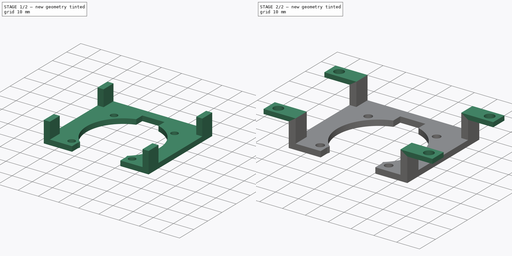
[diagram: build sequence overview — one tinted view per stage of 2, left to right]
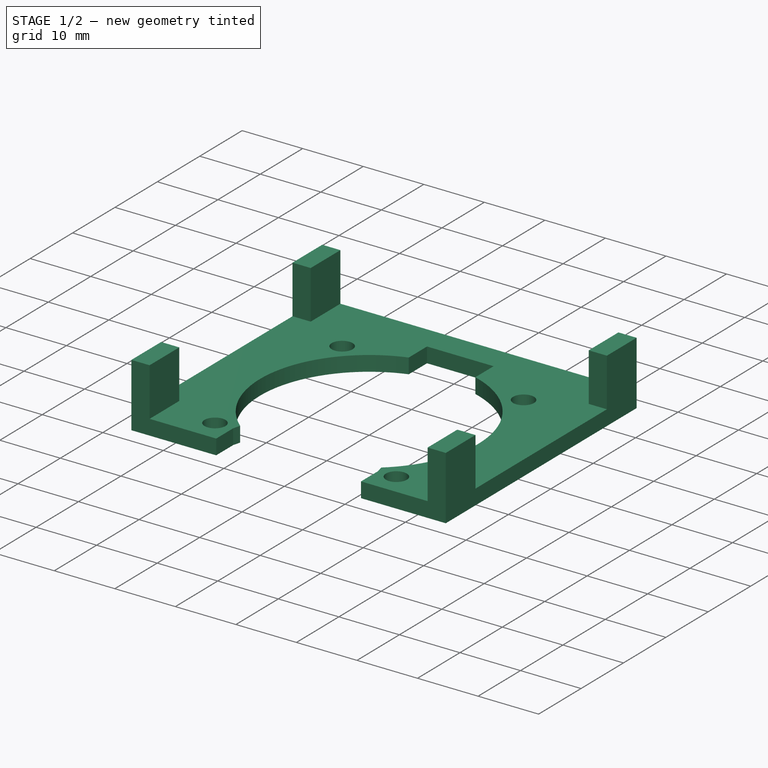
[diagram: stage 1 of 2 — iso view after this stage's code; geometry added in this stage tinted green]
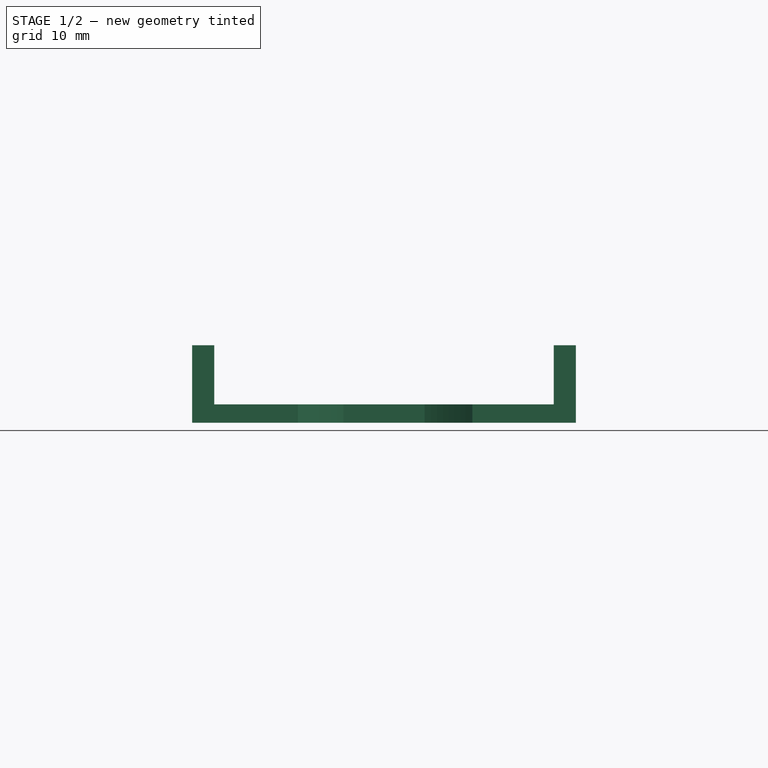
[diagram: stage 1 of 2 — front view after this stage's code; geometry added in this stage tinted green]
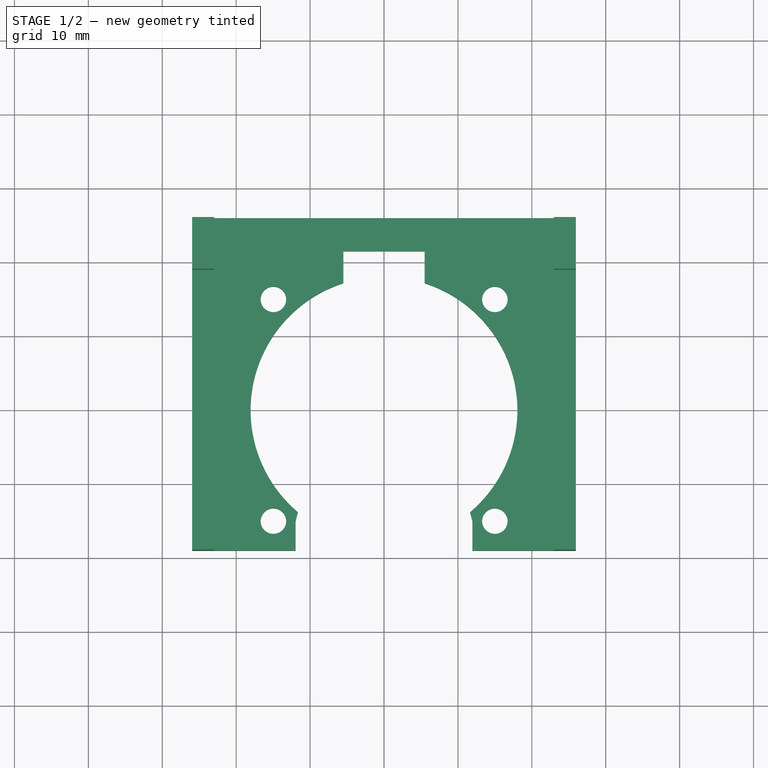
[diagram: stage 1 of 2 — top view after this stage's code; geometry added in this stage tinted green]
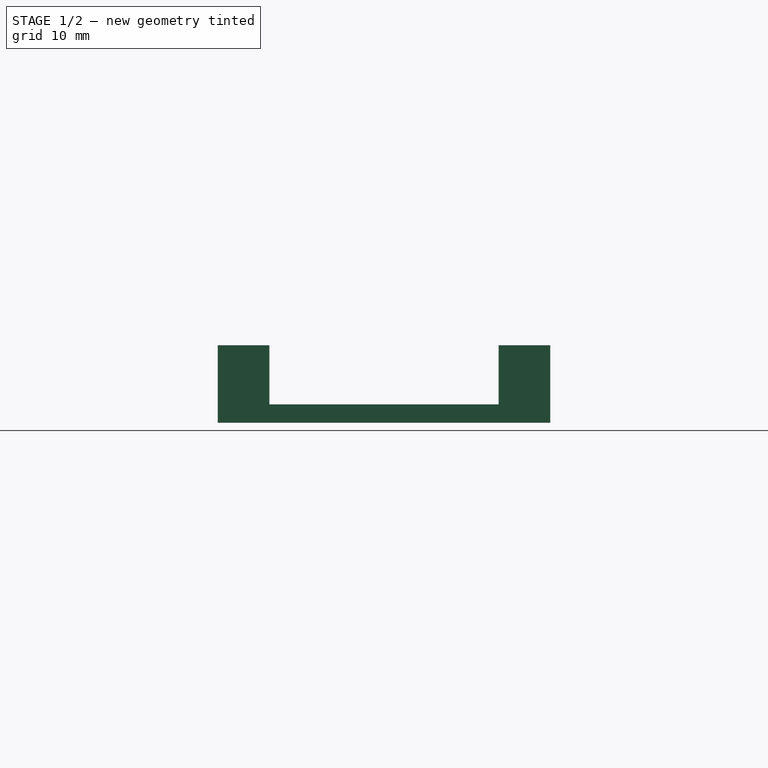
[diagram: stage 1 of 2 — right view after this stage's code; geometry added in this stage tinted green]
FCSTD DOCUMENT  (FreeCAD 1.0R39109 (Git))
Label: cam_holder_base
License: All rights reserved
LicenseURL: https://en.wikipedia.org/wiki/All_rights_reserved
objects: Sketcher::SketchObject×4, PartDesign::Pad×3, PartDesign::Body×1
note: 18 computed .brp shape members not serialized (recipe doc carries the construction recipe); baked Part::Feature solids carry a one-line shape summary decoded from their .brp

FEATURE [Sketcher::SketchObject] Sketch
  ArcFitTolerance = 0
  FullyConstrained = true
  MakeInternals = false
  sketch-geometry (27):
    g0: LineSegment [constr] StartX=-19.96 StartY=19 StartZ=0 EndX=-19.96 EndY=-14 EndZ=0
    g1: LineSegment StartX=-19.96 StartY=-19 StartZ=0 EndX=-11.96 EndY=-19 EndZ=0
    g2: LineSegment [constr] StartX=20 StartY=-14 StartZ=0 EndX=20 EndY=19 EndZ=0
    g3: LineSegment [constr] StartX=20 StartY=19 StartZ=0 EndX=-19.96 EndY=19 EndZ=0
    g4: GeomPoint [constr] X=0 Y=0 Z=0
    g5: Circle CenterX=-14.96 CenterY=15 CenterZ=0 NormalX=0 NormalY=0 NormalZ=1 AngleXU=0 Radius=1.725
    g6: Circle CenterX=15 CenterY=15 CenterZ=0 NormalX=0 NormalY=0 NormalZ=1 AngleXU=0 Radius=1.725
    g7: Circle CenterX=-14.96 CenterY=-15 CenterZ=0 NormalX=0 NormalY=0 NormalZ=1 AngleXU=0 Radius=1.725
    g8: Circle CenterX=15 CenterY=-15 CenterZ=0 NormalX=0 NormalY=0 NormalZ=1 AngleXU=0 Radius=1.725
    g9: ArcOfCircle CenterX=0 CenterY=0 CenterZ=0 NormalX=0 NormalY=0 NormalZ=1 AngleXU=0 Radius=18.05 StartAngle=5.41371 EndAngle=7.54435
    g10: LineSegment StartX=-11.96 StartY=-19 StartZ=0 EndX=-11.96 EndY=-15 EndZ=0
    g11: LineSegment StartX=11.96 StartY=-19 StartZ=0 EndX=11.96 EndY=-15 EndZ=0
    g12: LineSegment StartX=11.96 StartY=-19 StartZ=0 EndX=20.04 EndY=-19 EndZ=0
    g13: LineSegment StartX=-5.5 StartY=21.5 StartZ=0 EndX=5.5 EndY=21.5 EndZ=0
    g14: LineSegment StartX=-5.5 StartY=21.5 StartZ=0 EndX=-5.5 EndY=17.1916 EndZ=0
    g15: LineSegment StartX=5.5 StartY=21.5 StartZ=0 EndX=5.5 EndY=17.1916 EndZ=0
    g16: ArcOfCircle CenterX=0 CenterY=0 CenterZ=0 NormalX=0 NormalY=0 NormalZ=1 AngleXU=0 Radius=18.05 StartAngle=1.88043 EndAngle=4.01106
    g17: LineSegment StartX=-20 StartY=26 StartZ=0 EndX=20 EndY=26 EndZ=0
    g18: LineSegment StartX=-11.96 StartY=-15 StartZ=0 EndX=-11.6464 EndY=-13.79 EndZ=0
    g19: LineSegment StartX=11.96 StartY=-15 StartZ=0 EndX=11.6464 EndY=-13.79 EndZ=0
    g20: GeomPoint [constr] X=-19.96 Y=-14 Z=0
    g21: LineSegment StartX=-25.96 StartY=26 StartZ=0 EndX=-25.96 EndY=-19 EndZ=0
    g22: LineSegment StartX=-19.96 StartY=-19 StartZ=0 EndX=-25.96 EndY=-19 EndZ=0
    g23: LineSegment StartX=-20 StartY=26 StartZ=0 EndX=-25.96 EndY=26 EndZ=0
    g24: LineSegment StartX=20.04 StartY=-19 StartZ=0 EndX=25.96 EndY=-19 EndZ=0
    g25: LineSegment StartX=25.96 StartY=-19 StartZ=0 EndX=25.96 EndY=26 EndZ=0
    g26: LineSegment StartX=25.96 StartY=26 StartZ=0 EndX=20 EndY=26 EndZ=0
  constraints (77):
    c: Coincident(g2,g3)
    c: Coincident(g3,g0)
    c: Horizontal(g1)
    c: Horizontal(g3)
    c: Vertical(g0)
    c: Vertical(g2)
    c: Coincident(g4,g-1)
    c: DistanceX(g1,g12) = 40
    c: DistanceY(g1,g0) = 38
    c: Distance(g5,g0) = 5
    c: Distance(g5,g3) = 4
    c: Equal(g5,g6)
    c: Equal(g5,g7)
    c: Equal(g5,g8)
    c: Diameter(g5) = 3.45
    c: Vertical(g6,g8)
    c: Horizontal(g7,g8)
    c: Horizontal(g5,g6)
    c: Vertical(g5,g7)
    c: Distance(g4,g2) = 20
    c: Distance(g6,g2) = 5
    c: Distance(g7,g1) = 4
    c: Distance(g4,g1) = 19
    c: Coincident(g9,g4)
    c: Diameter(g9) = 36.1
    c: Vertical(g10)
    c: Distance(g10) = 4
    c: DistanceX(g1,g10) = 8
    c: Symmetric(g11,g10,g-2)
    c: Parallel(g11,g10)
    c: Coincident(g1,g10)
    c: Coincident(g12,g11)
    c: Horizontal(g13)
    c: Distance(g13,g3) = 2.5
    c: Distance(g13,g-2) = 5.5
    c: DistanceX(g13,g13) = 11
    c: Coincident(g14,g13)
    c: Vertical(g14)
    c: Coincident(g15,g13)
    c: Vertical(g15)
    c: Equal(g9,g16)
    c: Coincident(g9,g15)
    c: Coincident(g16,g14)
    c: Coincident(g9,g16)
    c: Horizontal(g17)
    c: Equal(g10,g11)
    c: Coincident(g18,g10)
    c: Coincident(g18,g16)
    c: Coincident(g19,g11)
    c: Coincident(g19,g9)
    c: Distance(g18) = 1.25
    c: Equal(g19,g18)
    c: Distance(g17,g-2) = 20
    c: DistanceX(g17,g17) = 40
    c: Distance(g20,g1) = 5
    c: Coincident(g20,g0)
    c: Equal(g2,g0)
    c: Horizontal(g12)
    c: DistanceX(g5,g4) = 14.96
    c: Vertical(g21)
    c: DistanceX(g1,g4) = 11.96
    c: Coincident(g22,g1)
    c: Horizontal(g22)
    c: Coincident(g21,g22)
    c: DistanceY(g0,g17) = 7
    c: Horizontal(g23)
    c: Coincident(g23,g21)
    c: DistanceX(g21,g0) = 6
    c: Coincident(g23,g17)
    c: Coincident(g24,g12)
    c: Horizontal(g24)
    c: Coincident(g25,g24)
    c: Vertical(g25)
    c: Coincident(g26,g25)
    c: Coincident(g26,g17)
    c: Horizontal(g26)
    c: Equal(g26,g23)
FEATURE [PartDesign::Pad] Pad
  Direction = (0,0,1)
  Length = 2.5
  Length2 = 10
  Profile = -> Sketch
  ReferenceAxis = -> Sketch [N_Axis]
  Suppressed = false
  Type = 0
FEATURE [Sketcher::SketchObject] Sketch001
  ArcFitTolerance = 1e-06
  AttachmentSupport = -> [Pad]
  FullyConstrained = true
  MakeInternals = false
  MapMode = 5
  Placement = pos=(0,0,2.5) rot=(0,0,1;0rad)
FEATURE [Sketcher::SketchObject] Sketch002
  ArcFitTolerance = 1e-06
  AttachmentSupport = -> [Pad]
  ExternalGeometry = -> [Pad]
  FullyConstrained = true
  MakeInternals = false
  MapMode = 5
  Placement = pos=(0,0,2.5) rot=(0,0,1;0rad)
  sketch-geometry (21):
    g0: LineSegment StartX=-25.96 StartY=26 StartZ=0 EndX=-25.96 EndY=19 EndZ=0
    g1: LineSegment StartX=-25.96 StartY=19 StartZ=0 EndX=-22.96 EndY=19 EndZ=0
    g2: LineSegment StartX=-22.96 StartY=19 StartZ=0 EndX=-22.96 EndY=26 EndZ=0
    g3: GeomPoint [constr] X=-24.46 Y=22.5 Z=0
    g4: LineSegment StartX=-25.96 StartY=-12 StartZ=0 EndX=-25.96 EndY=-19 EndZ=0
    g5: LineSegment StartX=-25.96 StartY=-19 StartZ=0 EndX=-22.96 EndY=-19 EndZ=0
    g6: LineSegment StartX=-22.96 StartY=-19 StartZ=0 EndX=-22.96 EndY=-12 EndZ=0
    g7: LineSegment StartX=-22.96 StartY=-12 StartZ=0 EndX=-25.96 EndY=-12 EndZ=0
    g8: GeomPoint [constr] X=-24.46 Y=-15.5 Z=0
    g9: LineSegment StartX=22.96 StartY=-12 StartZ=0 EndX=22.96 EndY=-19 EndZ=0
    g10: LineSegment StartX=22.96 StartY=-19 StartZ=0 EndX=25.96 EndY=-19 EndZ=0
    g11: LineSegment StartX=25.96 StartY=-19 StartZ=0 EndX=25.96 EndY=-12 EndZ=0
    g12: LineSegment StartX=25.96 StartY=-12 StartZ=0 EndX=22.96 EndY=-12 EndZ=0
    g13: GeomPoint [constr] X=24.46 Y=-15.5 Z=0
    g14: GeomPoint X=-22.96 Y=26 Z=0
    g15: LineSegment StartX=-25.96 StartY=26 StartZ=0 EndX=-22.96 EndY=26 EndZ=0
    g16: LineSegment StartX=22.96 StartY=26 StartZ=0 EndX=22.96 EndY=19 EndZ=0
    g17: LineSegment StartX=22.96 StartY=19 StartZ=0 EndX=25.96 EndY=19 EndZ=0
    g18: LineSegment StartX=25.96 StartY=19 StartZ=0 EndX=25.96 EndY=26 EndZ=0
    g19: LineSegment StartX=25.96 StartY=26 StartZ=0 EndX=22.96 EndY=26 EndZ=0
    g20: GeomPoint [constr] X=24.46 Y=22.5 Z=0
  constraints (49):
    c: Coincident(g0,g1)
    c: Coincident(g1,g2)
    c: Vertical(g0)
    c: Vertical(g2)
    c: Horizontal(g1)
    c: Symmetric(g2,g0,g3)
    c: Coincident(g0,g-5)
    c: DistanceY(g0,g0) = 7
    c: Coincident(g4,g5)
    c: Coincident(g5,g6)
    c: Coincident(g6,g7)
    c: Coincident(g7,g4)
    c: Vertical(g4)
    c: Vertical(g6)
    c: Horizontal(g5)
    c: Horizontal(g7)
    c: Symmetric(g6,g4,g8)
    c: Coincident(g9,g10)
    c: Coincident(g10,g11)
    c: Coincident(g11,g12)
    c: Coincident(g12,g9)
    c: Vertical(g9)
    c: Vertical(g11)
    c: Horizontal(g10)
    c: Horizontal(g12)
    c: Symmetric(g11,g9,g13)
    c: Equal(g7,g1)
    c: Equal(g4,g2)
    c: Coincident(g4,g-6)
    c: Equal(g6,g9)
    c: Equal(g7,g12)
    c: Coincident(g10,g-11)
    c: DistanceX(g0,g14) = 3
    c: Coincident(g15,g0)
    c: Coincident(g15,g14)
    c: Horizontal(g15)
    c: Coincident(g2,g14)
    c: Coincident(g16,g17)
    c: Coincident(g17,g18)
    c: Coincident(g18,g19)
    c: Coincident(g19,g16)
    c: Vertical(g16)
    c: Vertical(g18)
    c: Horizontal(g17)
    c: Horizontal(g19)
    c: Symmetric(g18,g16,g20)
    c: Equal(g19,g15)
    c: Equal(g18,g2)
    c: Symmetric(g20,g3,g-2)
FEATURE [PartDesign::Pad] Pad001
  BaseFeature = -> Pad
  Direction = (0,0,1)
  Length = 8
  Length2 = 10
  Profile = -> Sketch002
  ReferenceAxis = -> Sketch002 [N_Axis]
  Refine = true
  Suppressed = false
  Type = 0
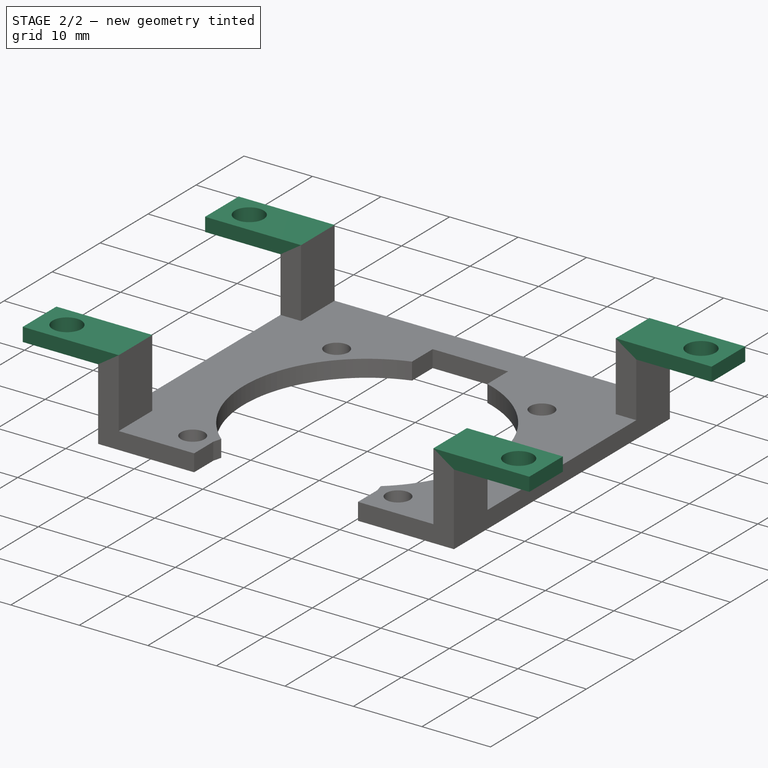
[diagram: stage 2 of 2 — iso view after this stage's code; geometry added in this stage tinted green]
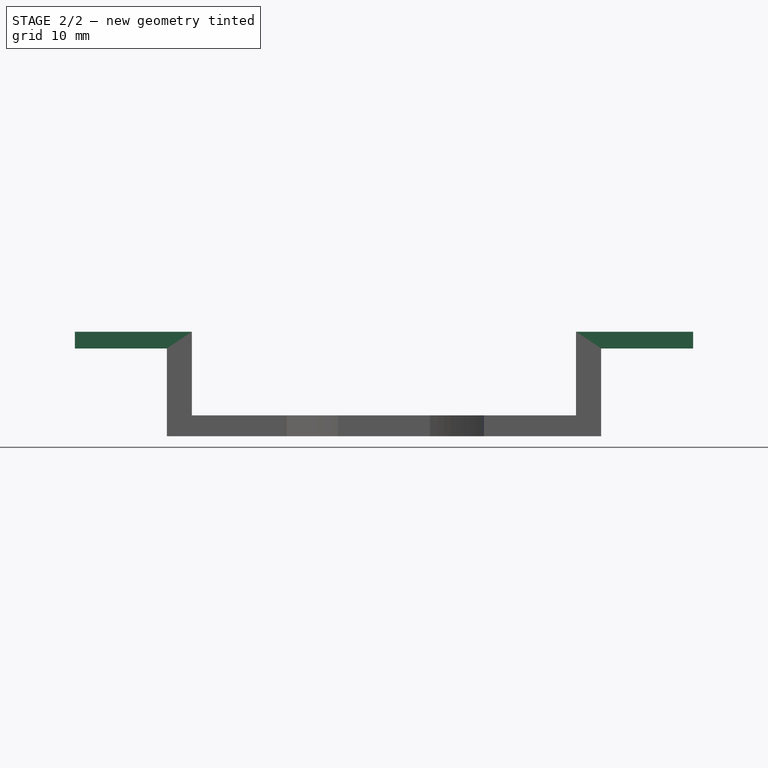
[diagram: stage 2 of 2 — front view after this stage's code; geometry added in this stage tinted green]
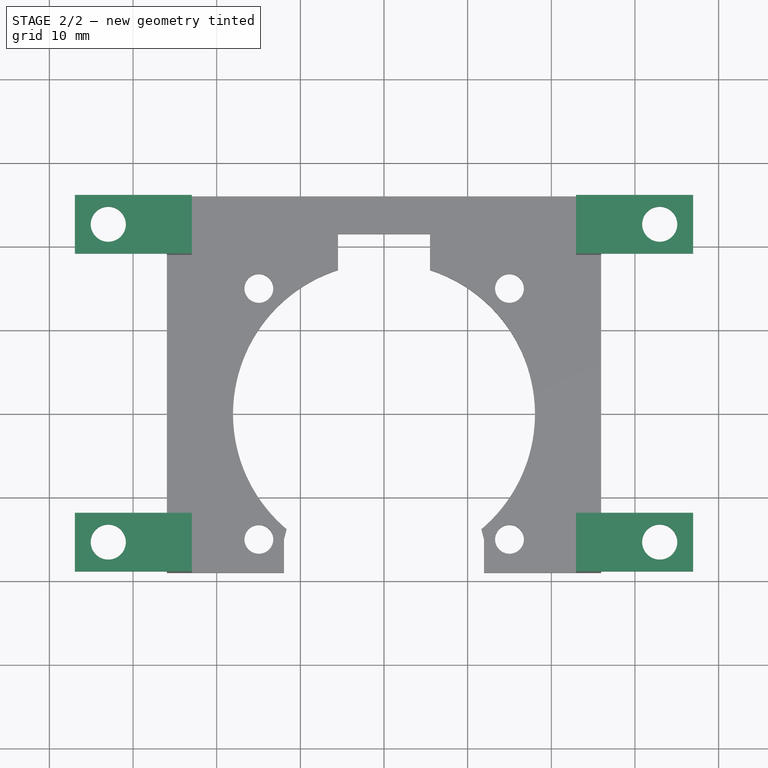
[diagram: stage 2 of 2 — top view after this stage's code; geometry added in this stage tinted green]
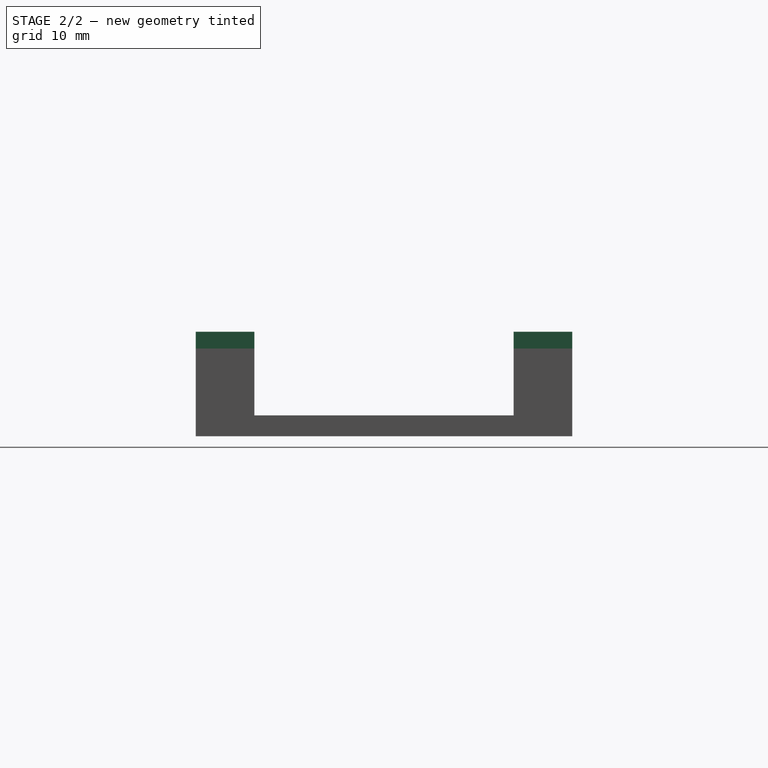
[diagram: stage 2 of 2 — right view after this stage's code; geometry added in this stage tinted green]
FEATURE [Sketcher::SketchObject] Sketch003
  ArcFitTolerance = 1e-06
  AttachmentSupport = -> [Pad001]
  ExternalGeometry = -> [Pad001]
  FullyConstrained = true
  MakeInternals = false
  MapMode = 5
  Placement = pos=(0,0,10.5) rot=(0,0,1;0rad)
  sketch-geometry (20):
    g0: LineSegment StartX=-22.96 StartY=26 StartZ=0 EndX=-22.96 EndY=19 EndZ=0
    g1: LineSegment StartX=-22.96 StartY=19 StartZ=0 EndX=-36.96 EndY=19 EndZ=0
    g2: LineSegment StartX=-36.96 StartY=19 StartZ=0 EndX=-36.96 EndY=26 EndZ=0
    g3: LineSegment StartX=-36.96 StartY=26 StartZ=0 EndX=-22.96 EndY=26 EndZ=0
    g4: LineSegment StartX=-22.96 StartY=-12 StartZ=0 EndX=-36.96 EndY=-12 EndZ=0
    g5: LineSegment StartX=-22.96 StartY=-12 StartZ=0 EndX=-22.96 EndY=-19 EndZ=0
    g6: LineSegment StartX=-22.96 StartY=-19 StartZ=0 EndX=-36.96 EndY=-19 EndZ=0
    g7: LineSegment StartX=-36.96 StartY=-19 StartZ=0 EndX=-36.96 EndY=-12 EndZ=0
    g8: LineSegment StartX=22.96 StartY=-12 StartZ=0 EndX=36.96 EndY=-12 EndZ=0
    g9: LineSegment StartX=22.96 StartY=-12 StartZ=0 EndX=22.96 EndY=-19 EndZ=0
    g10: LineSegment StartX=22.96 StartY=-19 StartZ=0 EndX=36.96 EndY=-19 EndZ=0
    g11: LineSegment StartX=36.96 StartY=-19 StartZ=0 EndX=36.96 EndY=-12 EndZ=0
    g12: Circle CenterX=-32.96 CenterY=22.5 CenterZ=0 NormalX=0 NormalY=0 NormalZ=1 AngleXU=0 Radius=2.1
    g13: Circle CenterX=-32.96 CenterY=-15.5 CenterZ=0 NormalX=0 NormalY=0 NormalZ=1 AngleXU=0 Radius=2.1
    g14: Circle CenterX=32.96 CenterY=22.5 CenterZ=0 NormalX=0 NormalY=0 NormalZ=1 AngleXU=0 Radius=2.1
    g15: Circle CenterX=32.96 CenterY=-15.5 CenterZ=0 NormalX=0 NormalY=0 NormalZ=1 AngleXU=0 Radius=2.1
    g16: LineSegment StartX=22.96 StartY=26 StartZ=0 EndX=36.96 EndY=26 EndZ=0
    g17: LineSegment StartX=36.96 StartY=26 StartZ=0 EndX=36.96 EndY=19 EndZ=0
    g18: LineSegment StartX=36.96 StartY=19 StartZ=0 EndX=22.96 EndY=19 EndZ=0
    g19: LineSegment StartX=22.96 StartY=19 StartZ=0 EndX=22.96 EndY=26 EndZ=0
  constraints (51):
    c: Coincident(g0,g-12)
    c: Coincident(g0,g-12)
    c: Coincident(g1,g0)
    c: Horizontal(g1)
    c: Coincident(g2,g1)
    c: Vertical(g2)
    c: Coincident(g3,g2)
    c: Coincident(g3,g0)
    c: Horizontal(g3)
    c: DistanceX(g1,g1) = 14
    c: Coincident(g4,g-16)
    c: Horizontal(g4)
    c: Coincident(g5,g4)
    c: Coincident(g5,g-15)
    c: Coincident(g6,g5)
    c: Horizontal(g6)
    c: Coincident(g7,g4)
    c: Vertical(g7)
    c: Equal(g6,g1)
    c: Equal(g4,g1)
    c: Equal(g7,g2)
    c: Coincident(g8,g-14)
    c: Horizontal(g8)
    c: Coincident(g9,g8)
    c: Coincident(g9,g-14)
    c: Coincident(g10,g9)
    c: Horizontal(g10)
    c: Coincident(g11,g8)
    c: Vertical(g11)
    c: Diameter(g12) = 4.2
    c: Distance(g12,g2) = 4
    c: Distance(g12,g1) = 3.5
    c: Equal(g13,g12)
    c: Equal(g14,g12)
    c: Symmetric(g12,g14,g-2)
    c: Distance(g13,g7) = 4
    c: Distance(g13,g6) = 3.5
    c: Equal(g14,g15)
    c: Symmetric(g13,g15,g-2)
    c: Coincident(g17,g16)
    c: Vertical(g17)
    c: Horizontal(g18)
    c: Coincident(g19,g16)
    c: Vertical(g19)
    c: Coincident(g18,g19)
    c: Coincident(g17,g18)
    c: Symmetric(g0,g16,g-2)
    c: Symmetric(g2,g16,g-2)
    c: Equal(g0,g19)
    c: Symmetric(g11,g6,g-2)
    c: Equal(g10,g6)
FEATURE [PartDesign::Pad] Pad002
  BaseFeature = -> Pad001
  Direction = (0,0,1)
  Length = 2
  Length2 = 10
  Profile = -> Sketch003
  ReferenceAxis = -> Sketch003 [N_Axis]
  Refine = true
  Suppressed = false
  Type = 0
FEATURE [PartDesign::Body] Body  label="cam_holder_base"
  AllowCompound = false
  Group = -> [Sketch,Pad,Sketch001,Sketch002,Pad001,Sketch003,Pad002]
  Origin = -> Origin
  Tip = -> Pad002
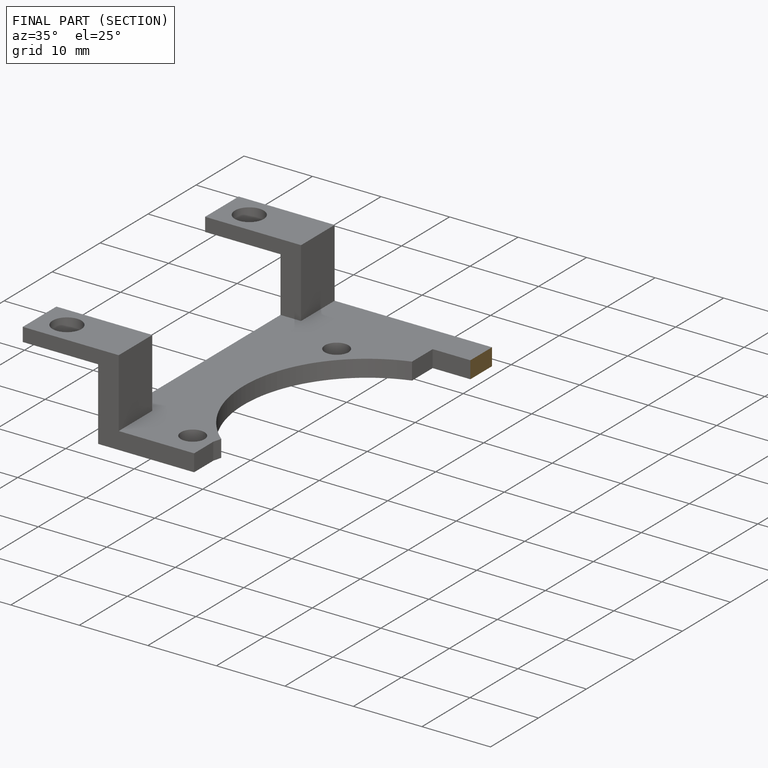
[diagram: finished part — half-section view (interior)]
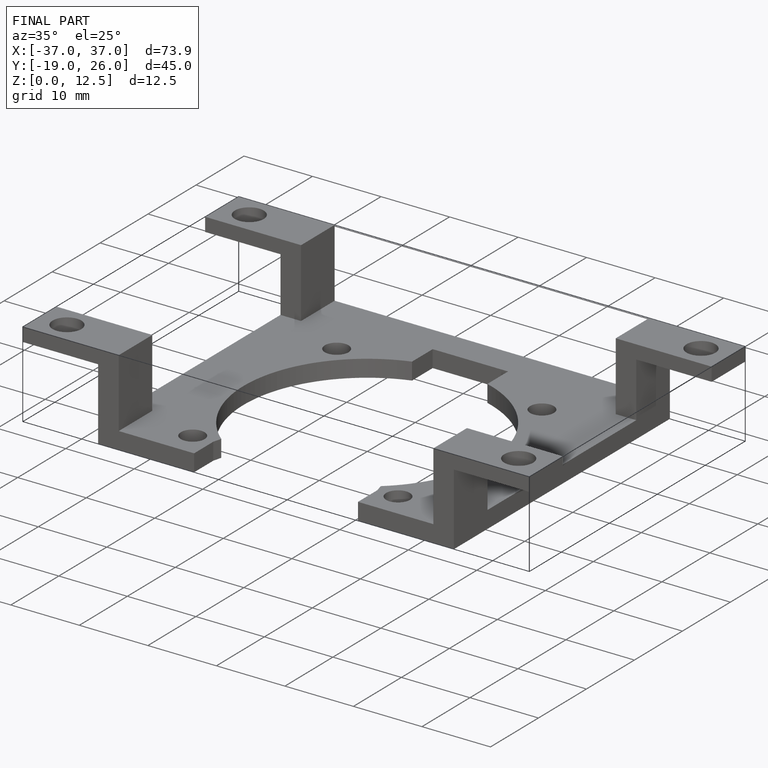
[diagram: finished part — iso view with bounding-box wireframe]
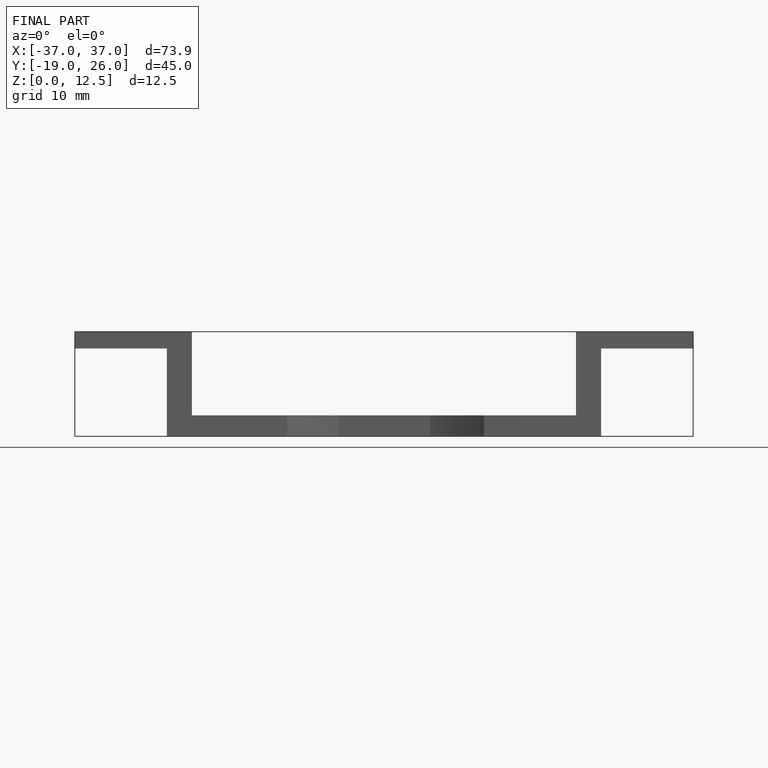
[diagram: finished part — front view with bounding-box wireframe]
